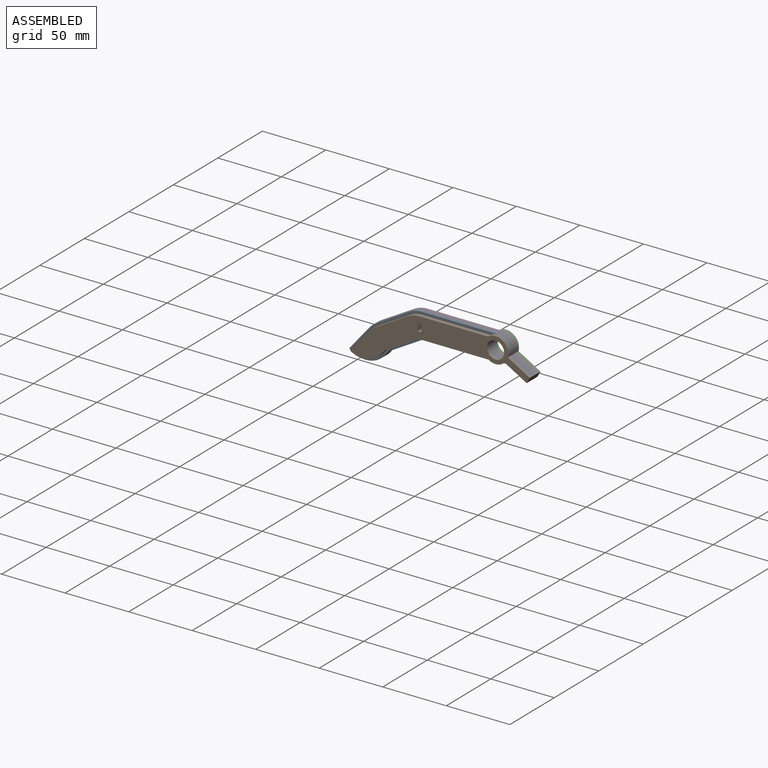
[diagram: assembled view]
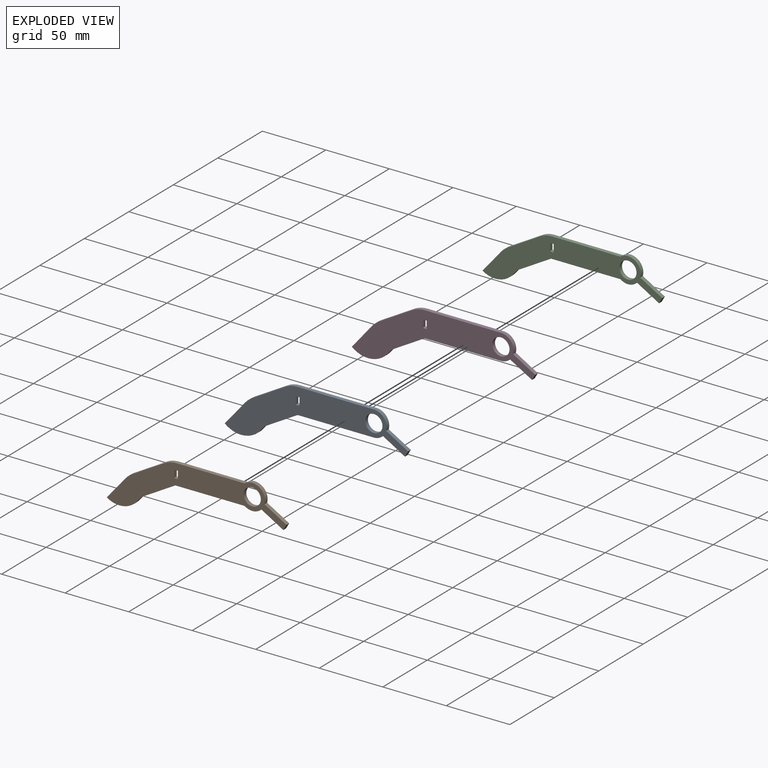
[diagram: exploded view]
GUIDED TOUR — MATED ASSEMBLY (Onshape document 87afc278f5a92cad2f19bcd5, AutoMate assembly 87afc278f5a92cad2f19bcd5_d96bc5d2577d456874f8f42c_0627215d689d29a081c2976f_default)

This assembly has 4 components, labeled P0..P3 below (a component is one placed occurrence of a part; the same part can appear more than once), held together by 3 mates. A mate is a constraint between two components; its type names the relative motion it leaves free:
  FASTENED — locks the two components together rigidly (no relative motion).
Axis/direction vectors are unit vectors and 'through' points are millimeter coordinates, both in the assembly's world frame.

MATES
  1. FASTENED "Fastened 1": P0 <-> P3, direction (0.000, 1.000, 0.000) through (7.67, 1.48, -9.85) mm
  2. FASTENED "Fastened 2": P0 <-> P1, direction (0.000, -1.000, 0.000) through (61.88, -1.52, -2.66) mm
  3. FASTENED "Fastened 3": P3 <-> P2, direction (0.000, 1.000, 0.000) through (61.88, 4.48, -2.66) mm

ASSEMBLY ORDER
  1. P3 — the base component [order verified]
  2. P2 [order verified]
  3. P0 [order verified]
  4. P1 [order verified]
Order-tag legend:
  [order verified] — this step's position reverses a verified removal order: the component was checked to insert without passing through the ones already placed.

Of the 4 components, 4 carry the full construction recipe — the FeatureScript program that regenerates the part's solid from scratch; the rest are supplied as boundary geometry only.
Each toured component is shown spotlighted twice — in the assembled view, then in the exploded view, where a leader line traces a displaced component back to its assembled socket (saturated green if recipe-attached, orange if geometry-only; every other component desaturated gray) — followed by its recipe or geometry summary and the mates that hold it.
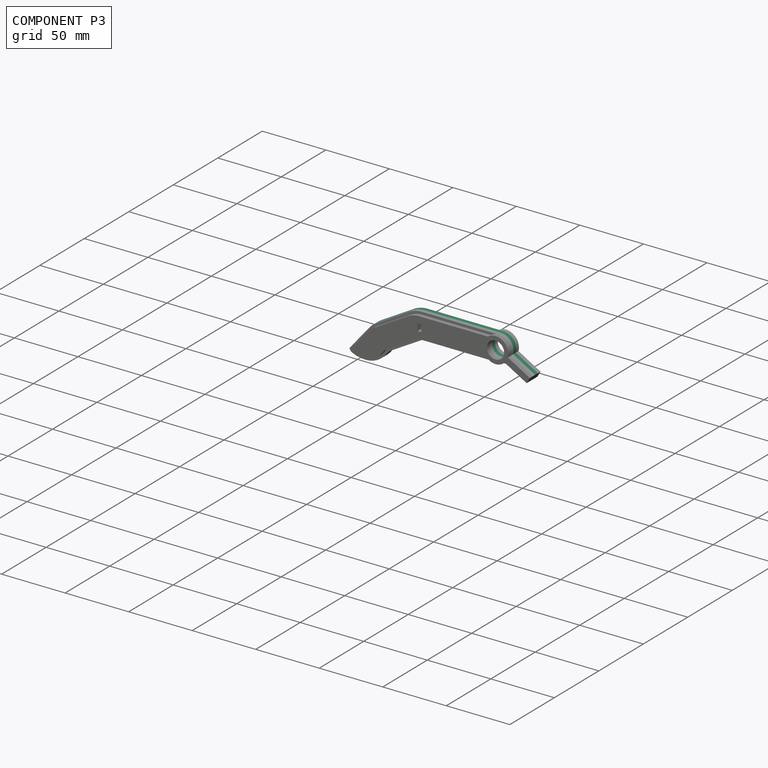
[diagram: component P3 — assembled]
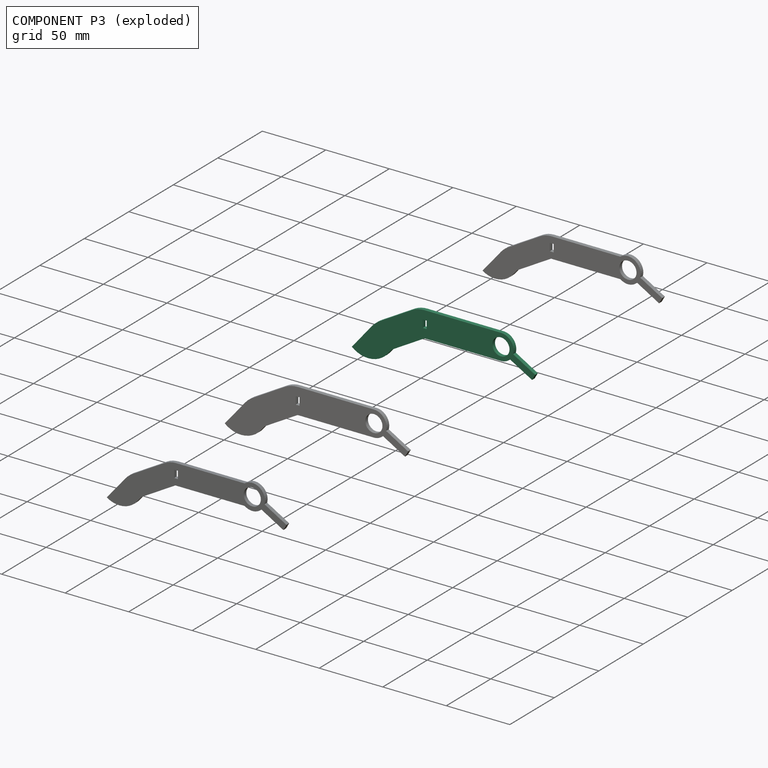
[diagram: component P3 — exploded]
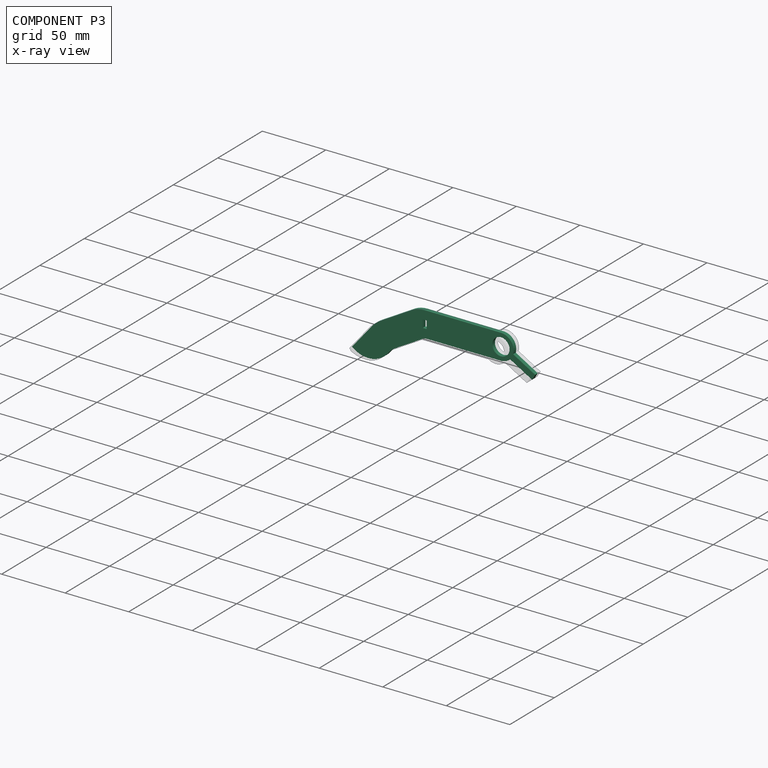
[diagram: component P3 — x-ray view]
COMPONENT P3 — same part as P0 (CADFS 00373658); its construction recipe is shown at P0.
Held by: FASTENED mate "Fastened 1" to P0; FASTENED mate "Fastened 3" to P2.
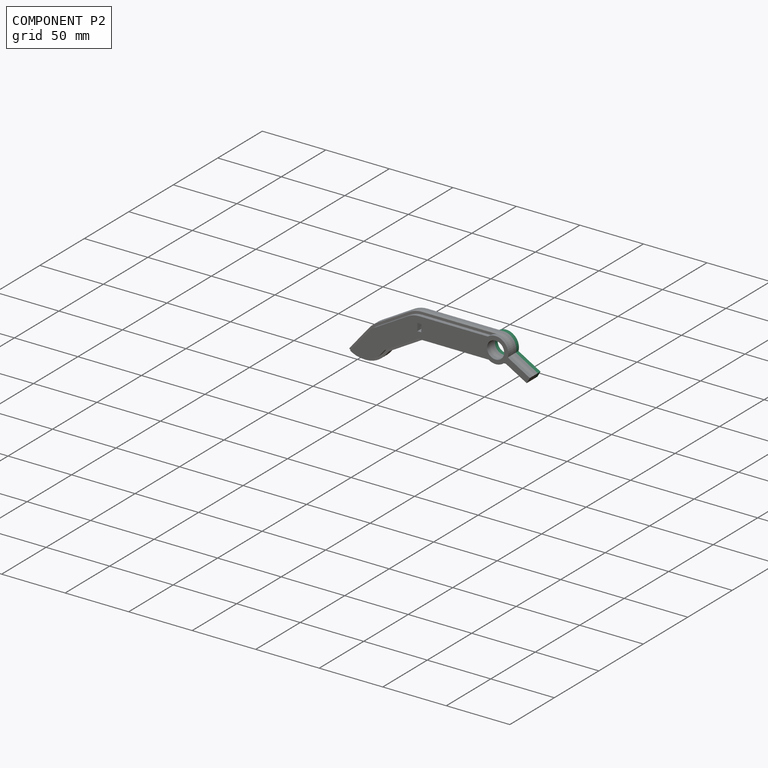
[diagram: component P2 — assembled]
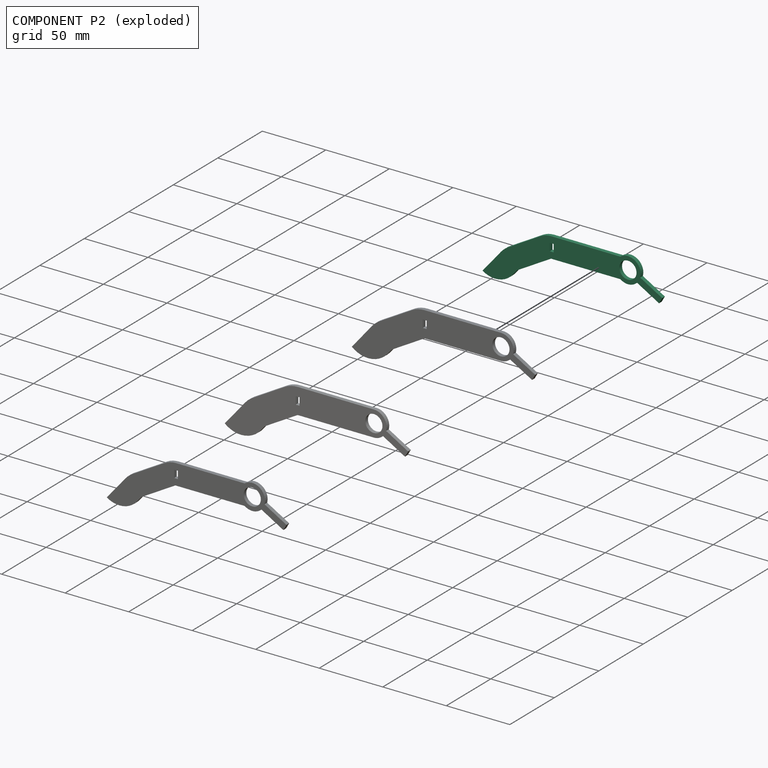
[diagram: component P2 — exploded]
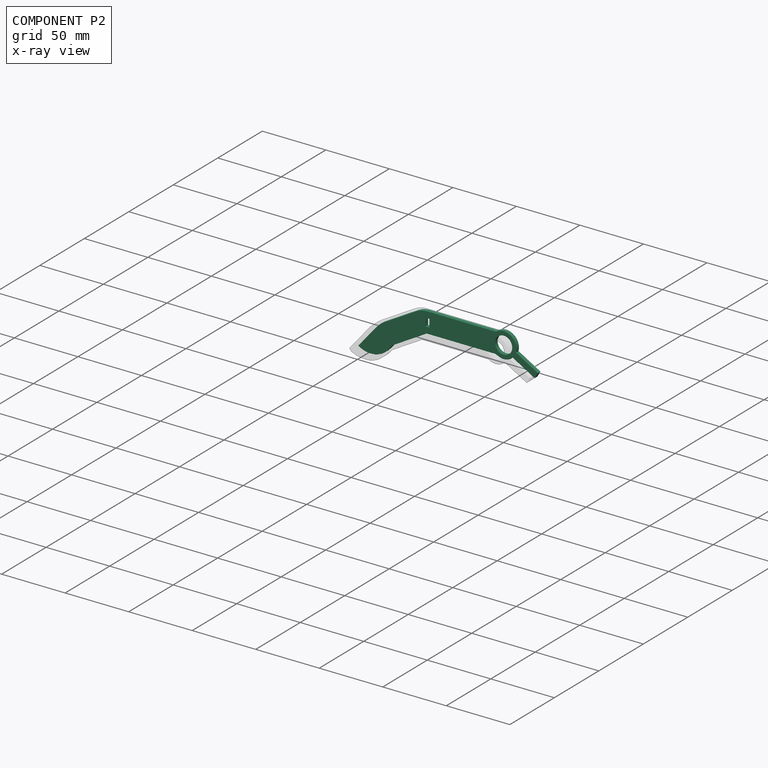
[diagram: component P2 — x-ray view]
COMPONENT P2 — same part as P1 (CADFS 00373659); its construction recipe is shown at P1.
Held by: FASTENED mate "Fastened 3" to P3.
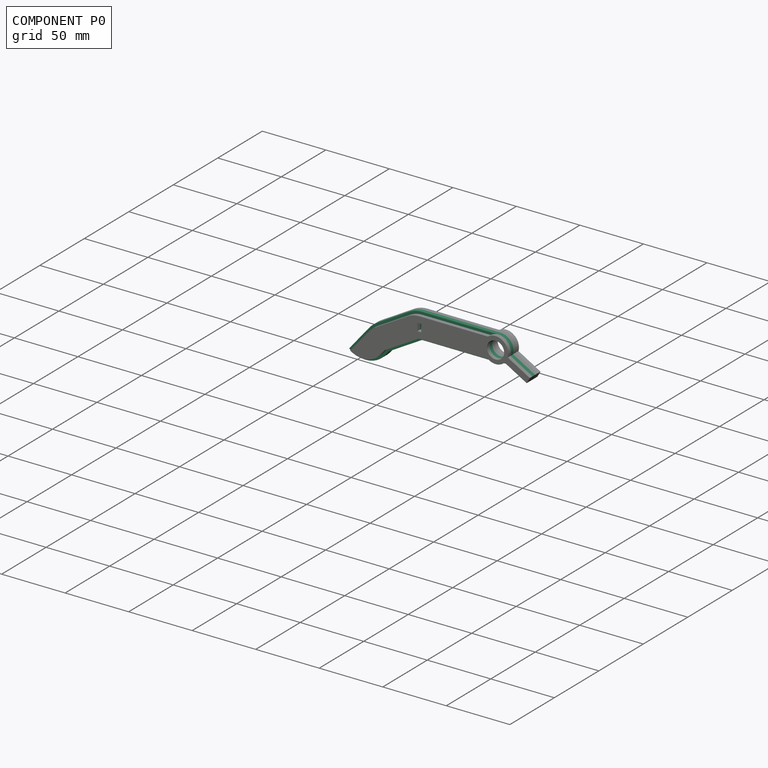
[diagram: component P0 — assembled]
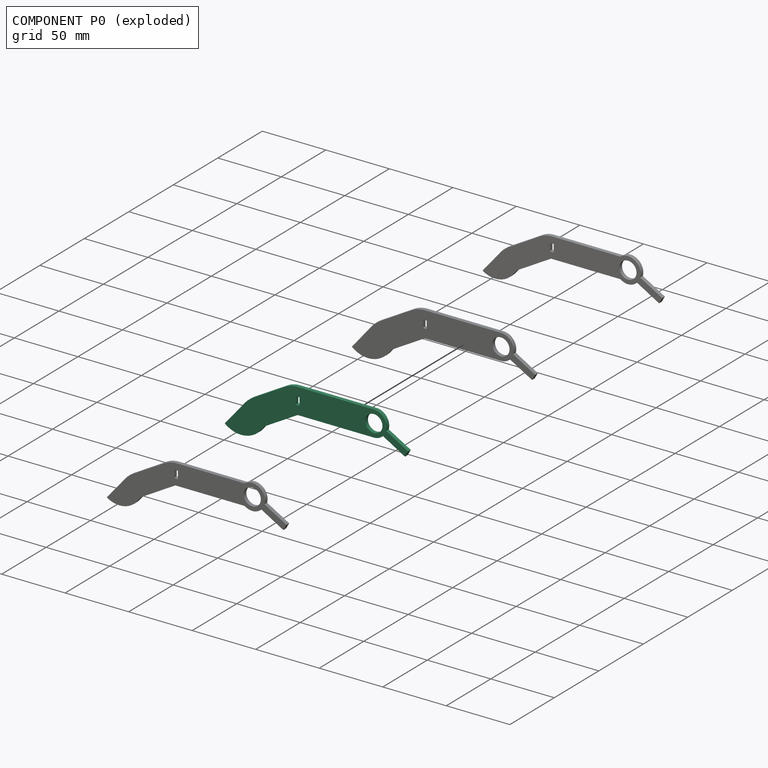
[diagram: component P0 — exploded]
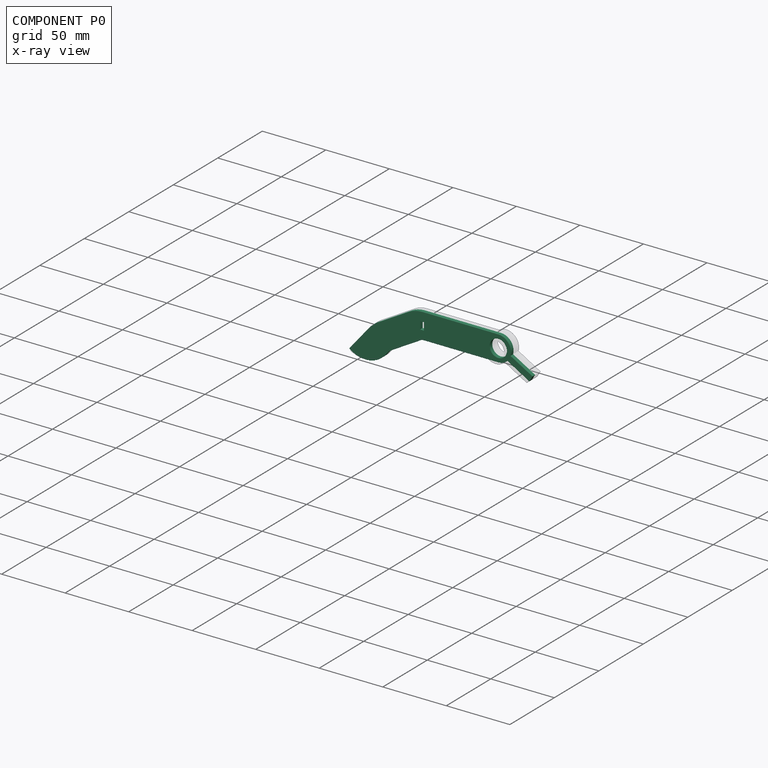
[diagram: component P0 — x-ray view]
COMPONENT P0 — recipe-attached (CADFS 00373658, mesh-verified: the recipe's output STEP matches this component's geometry to below the mesh-comparison resolution (tessellation chordal tolerance ~0.227 mm)).
Held by: FASTENED mate "Fastened 1" to P3; FASTENED mate "Fastened 2" to P1.
Construction recipe (FeatureScript — the CAD program that rebuilds this solid; sketch coordinates are in the units given by the * unit suffixes, e.g. mm):

FeatureScript 1511;
import(path : "onshape/std/geometry.fs", version : "1511.0");
import(path : "onshape/std/common.fs", version : "1511.0");
const mm = millimeter;
const VERTEX = EntityType.VERTEX;
const EDGE = EntityType.EDGE;
const FACE = EntityType.FACE;
const BODY = EntityType.BODY;
function v(x, y){return vector(x, y);}
function OD(order){return orderDisambiguation(order);}
function OSD(set){return originalSetDisambiguation(set);}
function TD(topology){return topologyDisambiguation(topology);}
function TDD(query){return trueDependencyDisambiguation(query);}
function sQuery(a, b, c) {return sketchEntityQuery(a, b, c);}

annotation { "Feature Type Name" : "Feature", "Feature Type Description" : "" }
export const myFeature = defineFeature(function(context is Context, id is Id, definition is map)
    precondition{}
    {
        {
            var Q0;
            Q0=qCreatedBy(makeId("Front.planeOp"),FACE);
            var sketch = newSketch(context, id + "F0", { "sketchPlane" : qUnion([Q0])});
            skLineSegment(sketch, "E0.bottom", {"start": v(30, -10) * mm, "end": v(-30, -10) * mm});
            skLineSegment(sketch, "E0.top", {"start": v(30, 10) * mm, "end": v(-30, 10) * mm});
            skLineSegment(sketch, "E0.left", {"start": v(30, -10) * mm, "end": v(30, 10) * mm, "construction": true});
            skLineSegment(sketch, "E0.right", {"start": v(-30, -10) * mm, "end": v(-30, 10) * mm, "construction": true});
            skPoint(sketch, "E0.middle", {"position": v(0, 0) * mm});
            skArc(sketch, "E1", {"start": v(-30, 10) * mm, "mid": v(-35.18, 9.32) * mm, "end": v(-40, 7.32) * mm});
            skLineSegment(sketch, "E2", {"start": v(-40, 7.32) * mm, "end": v(-30, -10) * mm, "construction": true});
            skLineSegment(sketch, "E3", {"start": v(-40, 7.32) * mm, "end": v(-65.98, -7.68) * mm});
            skLineSegment(sketch, "E4", {"start": v(-30, -10) * mm, "end": v(-55.98, -25) * mm});
            skLineSegment(sketch, "E5", {"start": v(-65.98, -7.68) * mm, "end": v(-55.98, -25) * mm, "construction": true});
            skArc(sketch, "E6", {"start": v(-65.98, -7.68) * mm, "mid": v(-68.84, -9.68) * mm, "end": v(-71.3, -12.14) * mm});
            skLineSegment(sketch, "E7", {"start": v(-71.3, -12.14) * mm, "end": v(-55.98, -25) * mm, "construction": true});
            skLineSegment(sketch, "E8", {"start": v(-71.3, -12.14) * mm, "end": v(-87.37, -31.3) * mm});
            skLineSegment(sketch, "E9", {"start": v(-55.98, -25) * mm, "end": v(-59.2, -28.83) * mm});
            skArc(sketch, "E10", {"start": v(-87.37, -31.3) * mm, "mid": v(-72.77, -35.9) * mm, "end": v(-59.2, -28.83) * mm});
            skCircle(sketch, "E11", {"center": v(30, 0) * mm, "radius": 6.75 * mm});
            skLineSegment(sketch, "E12", {"start": v(30, 0) * mm, "end": v(55.7, -14.84) * mm, "construction": true});
            skArc(sketch, "E13", {"start": v(30, -10) * mm, "mid": v(33.87, -9.22) * mm, "end": v(37.14, -7) * mm});
            skArc(sketch, "E14", {"start": v(30, 10) * mm, "mid": v(37.96, 6.05) * mm, "end": v(39.64, -2.68) * mm});
            skLineSegment(sketch, "E15", {"start": v(56.96, -12.68) * mm, "end": v(54.46, -17) * mm});
            skLineSegment(sketch, "E16", {"start": v(54.46, -17) * mm, "end": v(37.14, -7) * mm});
            skLineSegment(sketch, "E17", {"start": v(56.96, -12.68) * mm, "end": v(39.64, -2.68) * mm});
            skLineSegment(sketch, "E18.bottom", {"start": v(-28.5, -3) * mm, "end": v(-31.5, -3) * mm});
            skLineSegment(sketch, "E18.top", {"start": v(-28.5, 3) * mm, "end": v(-31.5, 3) * mm});
            skLineSegment(sketch, "E18.left", {"start": v(-28.5, -3) * mm, "end": v(-28.5, 3) * mm});
            skLineSegment(sketch, "E18.right", {"start": v(-31.5, -3) * mm, "end": v(-31.5, 3) * mm});
            skPoint(sketch, "E18.middle", {"position": v(-30, 0) * mm});
            skSolve(sketch);
        }
        {
            var Q0;
            Q0 = qSketchRegion(id + "F0", true);
            extrude(context, id + "F1", {"entities" : qUnion([Q0]), "depth" : 3 * mm});
        }
        {
            var Q0;
            Q0=makeQuery(id+"F1.opExtrude","SWEPT_EDGE",EDGE,{"disambiguationData":[OSD([sQuery(id+"F0.wireOp",EDGE,"E0.bottom"),sQuery(id+"F0.wireOp",EDGE,"E4")])]});
            var Q1;
            Q1=makeQuery(id+"F1.opExtrude","SWEPT_EDGE",EDGE,{"disambiguationData":[OSD([sQuery(id+"F0.wireOp",EDGE,"E4"),sQuery(id+"F0.wireOp",EDGE,"E9")])]});
            fillet(context, id + "F2", {"entities" : qUnion([Q0, Q1]), "radius" : 3 * mm, "tangentPropagation" : true, "allowEdgeOverflow" : false});
        }
    });
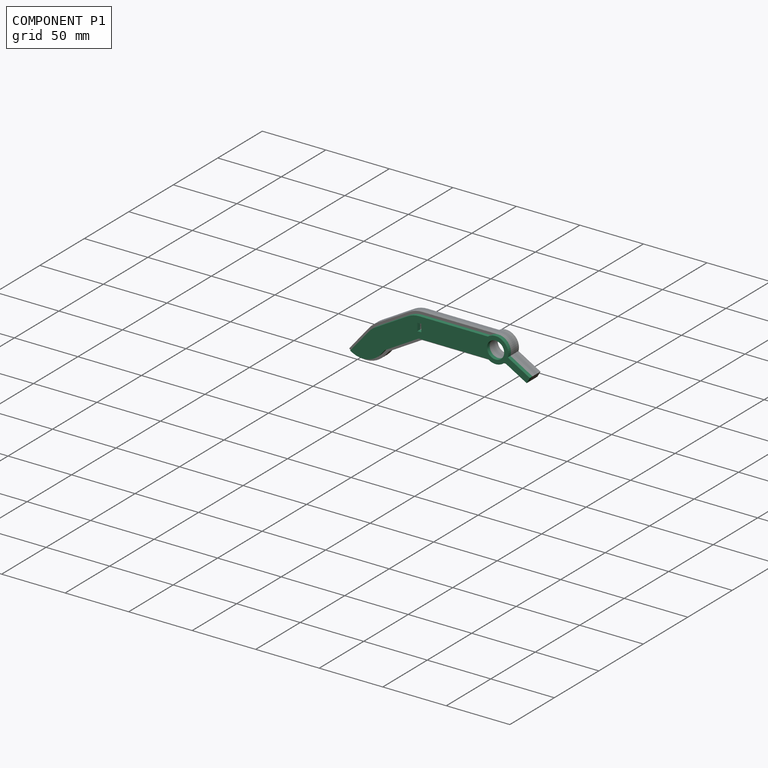
[diagram: component P1 — assembled]
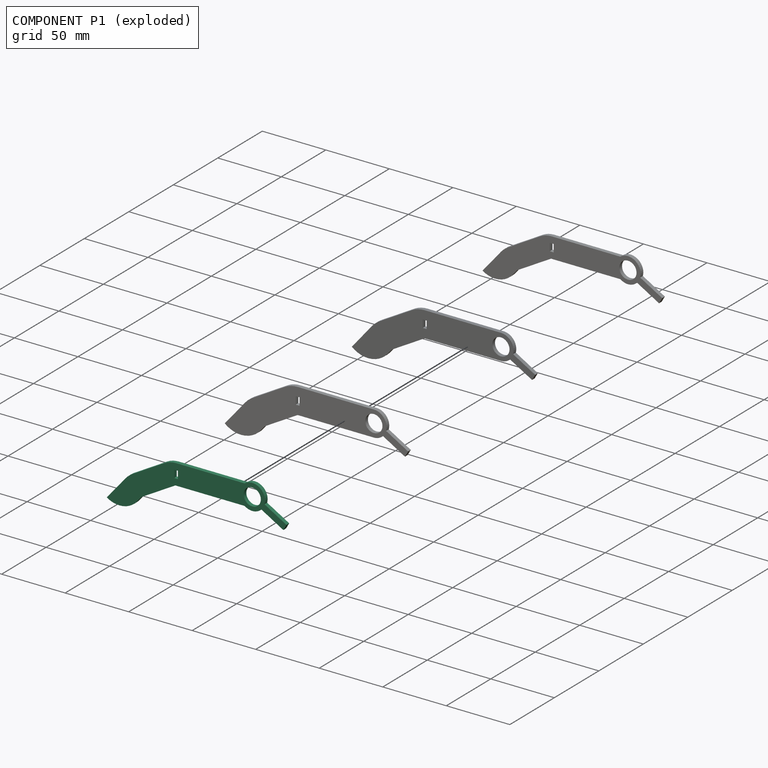
[diagram: component P1 — exploded]
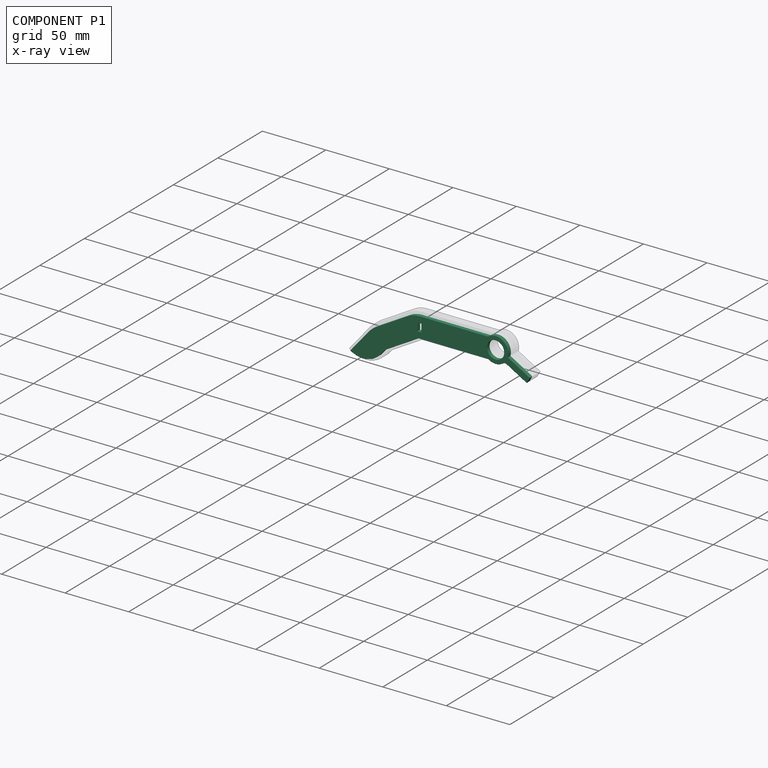
[diagram: component P1 — x-ray view]
COMPONENT P1 — recipe-attached (CADFS 00373659, mesh-verified: the recipe's output STEP matches this component's geometry to below the mesh-comparison resolution (tessellation chordal tolerance ~0.222 mm)).
Held by: FASTENED mate "Fastened 2" to P0.
Construction recipe (FeatureScript — the CAD program that rebuilds this solid; sketch coordinates are in the units given by the * unit suffixes, e.g. mm):

FeatureScript 1511;
import(path : "onshape/std/geometry.fs", version : "1511.0");
import(path : "onshape/std/common.fs", version : "1511.0");
const mm = millimeter;
const VERTEX = EntityType.VERTEX;
const EDGE = EntityType.EDGE;
const FACE = EntityType.FACE;
const BODY = EntityType.BODY;
function v(x, y){return vector(x, y);}
function OD(order){return orderDisambiguation(order);}
function OSD(set){return originalSetDisambiguation(set);}
function TD(topology){return topologyDisambiguation(topology);}
function TDD(query){return trueDependencyDisambiguation(query);}
function sQuery(a, b, c) {return sketchEntityQuery(a, b, c);}

annotation { "Feature Type Name" : "Feature", "Feature Type Description" : "" }
export const myFeature = defineFeature(function(context is Context, id is Id, definition is map)
    precondition{}
    {
        {
            var Q0;
            Q0=qCreatedBy(makeId("Front.planeOp"),FACE);
            var sketch = newSketch(context, id + "F0", { "sketchPlane" : qUnion([Q0])});
            skLineSegment(sketch, "E0.bottom", {"start": v(30, -10) * mm, "end": v(-30, -10) * mm, "construction": true});
            skLineSegment(sketch, "E0.top", {"start": v(30, 10) * mm, "end": v(-30, 10) * mm, "construction": true});
            skLineSegment(sketch, "E0.left", {"start": v(30, -10) * mm, "end": v(30, 10) * mm, "construction": true});
            skLineSegment(sketch, "E0.right", {"start": v(-30, -10) * mm, "end": v(-30, 10) * mm, "construction": true});
            skPoint(sketch, "E0.middle", {"position": v(0, 0) * mm});
            skArc(sketch, "E1", {"start": v(-30, 10) * mm, "mid": v(-35.18, 9.32) * mm, "end": v(-40, 7.32) * mm, "construction": true});
            skLineSegment(sketch, "E2", {"start": v(-40, 7.32) * mm, "end": v(-30, -10) * mm, "construction": true});
            skLineSegment(sketch, "E3", {"start": v(-40, 7.32) * mm, "end": v(-65.98, -7.68) * mm, "construction": true});
            skLineSegment(sketch, "E4", {"start": v(-30, -10) * mm, "end": v(-55.98, -25) * mm, "construction": true});
            skLineSegment(sketch, "E5", {"start": v(-65.98, -7.68) * mm, "end": v(-55.98, -25) * mm, "construction": true});
            skArc(sketch, "E6", {"start": v(-65.98, -7.68) * mm, "mid": v(-68.84, -9.68) * mm, "end": v(-71.3, -12.14) * mm, "construction": true});
            skLineSegment(sketch, "E7", {"start": v(-71.3, -12.14) * mm, "end": v(-55.98, -25) * mm, "construction": true});
            skLineSegment(sketch, "E8", {"start": v(-71.3, -12.14) * mm, "end": v(-87.37, -31.3) * mm, "construction": true});
            skLineSegment(sketch, "E9", {"start": v(-55.98, -25) * mm, "end": v(-59.2, -28.83) * mm, "construction": true});
            skArc(sketch, "E10", {"start": v(-87.37, -31.3) * mm, "mid": v(-72.77, -35.9) * mm, "end": v(-59.2, -28.83) * mm, "construction": true});
            skCircle(sketch, "E11", {"center": v(30, 0) * mm, "radius": 6.75 * mm});
            skLineSegment(sketch, "E12.0", {"start": v(30, -8) * mm, "end": v(-30.54, -8) * mm, "construction": true});
            skLineSegment(sketch, "E12.1", {"start": v(-30.54, -8) * mm, "end": v(-57.29, -23.44) * mm});
            skLineSegment(sketch, "E12.2", {"start": v(-57.29, -23.44) * mm, "end": v(-60.73, -27.54) * mm});
            skArc(sketch, "E12.3", {"start": v(-84.48, -30.96) * mm, "mid": v(-71.95, -33.8) * mm, "end": v(-60.73, -27.54) * mm});
            skLineSegment(sketch, "E12.4", {"start": v(-69.77, -13.43) * mm, "end": v(-84.48, -30.96) * mm});
            skLineSegment(sketch, "E12.5", {"start": v(30, 8) * mm, "end": v(-30, 8) * mm, "construction": true});
            skArc(sketch, "E12.6", {"start": v(-30, 8) * mm, "mid": v(-34.66, 7.39) * mm, "end": v(-39, 5.59) * mm});
            skLineSegment(sketch, "E12.7", {"start": v(-39, 5.59) * mm, "end": v(-64.98, -9.41) * mm});
            skArc(sketch, "E12.8", {"start": v(-64.98, -9.41) * mm, "mid": v(-67.55, -11.21) * mm, "end": v(-69.77, -13.43) * mm});
            skLineSegment(sketch, "E13", {"start": v(30, -8) * mm, "end": v(30, -10) * mm});
            skLineSegment(sketch, "E14", {"start": v(30, 8) * mm, "end": v(30, 10) * mm});
            skArc(sketch, "E15", {"start": v(30, 10) * mm, "mid": v(26.84, 9.49) * mm, "end": v(24, 8) * mm});
            skArc(sketch, "E16", {"start": v(30, -10) * mm, "mid": v(26.84, -9.49) * mm, "end": v(24, -8) * mm});
            skLineSegment(sketch, "E17", {"start": v(-30, 8) * mm, "end": v(24, 8) * mm});
            skLineSegment(sketch, "E18", {"start": v(24, -8) * mm, "end": v(-30.54, -8) * mm});
            skLineSegment(sketch, "E19", {"start": v(30, 0) * mm, "end": v(55.7, -14.84) * mm, "construction": true});
            skArc(sketch, "E20", {"start": v(30, 10) * mm, "mid": v(37.96, 6.05) * mm, "end": v(39.64, -2.68) * mm});
            skArc(sketch, "E21", {"start": v(30, -10) * mm, "mid": v(33.87, -9.22) * mm, "end": v(37.14, -7) * mm});
            skLineSegment(sketch, "E22", {"start": v(37.14, -7) * mm, "end": v(54.46, -17) * mm});
            skLineSegment(sketch, "E23", {"start": v(54.46, -17) * mm, "end": v(56.96, -12.68) * mm});
            skLineSegment(sketch, "E24", {"start": v(56.96, -12.68) * mm, "end": v(39.64, -2.68) * mm});
            skLineSegment(sketch, "E25.bottom", {"start": v(-28.5, -3) * mm, "end": v(-31.5, -3) * mm});
            skLineSegment(sketch, "E25.top", {"start": v(-28.5, 3) * mm, "end": v(-31.5, 3) * mm});
            skLineSegment(sketch, "E25.left", {"start": v(-28.5, -3) * mm, "end": v(-28.5, 3) * mm});
            skLineSegment(sketch, "E25.right", {"start": v(-31.5, -3) * mm, "end": v(-31.5, 3) * mm});
            skPoint(sketch, "E25.middle", {"position": v(-30, 0) * mm});
            skSolve(sketch);
        }
        {
            var Q0;
            Q0=qSketchRegion(id+"F0",true);
            extrude(context, id + "F1", {"entities" : qUnion([Q0]), "depth" : 3 * mm});
        }
    });
PROVENANCE & LICENSES
Assembly (occurrences, transforms, mates, per-part STEP geometry): AutoMate dataset, Zenodo record 7776208, CC0.
Construction recipes: CADFS (HuggingFace VladPyatov/CADFS, CC-BY-4.0, layered over the ABC dataset), FeatureScript reconstruction programs keyed by ABC model id.
Join: ABC meta listings map ABC model id -> Onshape documentId; within a shared document, parts are matched by geometric signature (bounding-box dims + volume at 0.1% relative tolerance, exact B-rep face/solid counts).
Verification: 4 of this assembly's 4 components carry a recipe attachment, and every attachment is mesh-verified: the CADFS STEP and the AutoMate member STEP were compared as meshes in their shared local frame (symmetric sampled-point-to-mesh distance); worst across the 4 attachments: below the mesh-comparison resolution (tessellation chordal tolerance ~0.227 mm) on a 152 mm part.
Renders: orthographic iso camera (az 35 / el 25); the floor grid conveys scale (grid pitch printed in each image; no ruler). In the exploded view each component is displaced by its stored offset vector: the offsets alone carry the explosion direction (mate normal/axis signs are not orientation cues and do not encode it), and separation distances are assigned per mate-chain, not proportionally to assembly-order depth.
